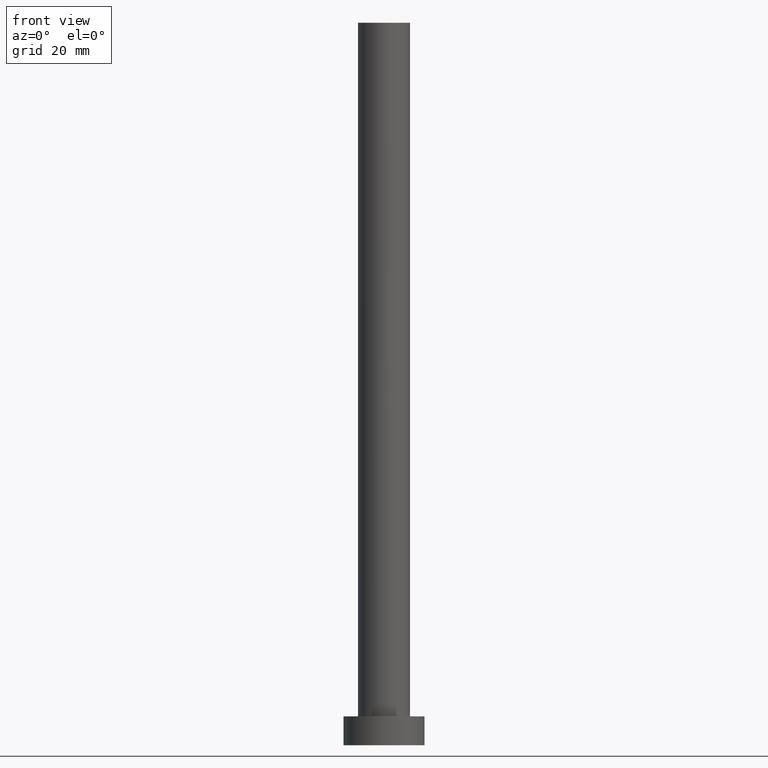
[diagram: clean part render]
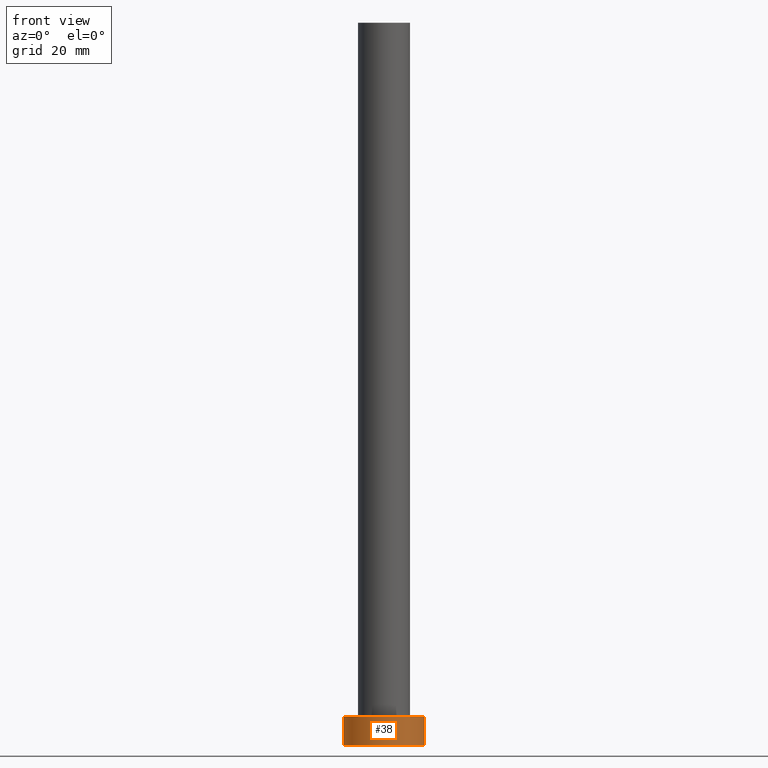
[diagram: same view with one face highlighted and labeled with its STEP entity id]
A machine part, front view. The second image highlights one B-rep face of the part: STEP entity #38.
In plain terms, the highlighted cylindrical surface (partial cylindrical patch) has radius 7 mm, axis along (-0, -0, -1).
Its self-contained STEP definition (entity closure, byte-faithful):
#5 = CARTESIAN_POINT ( 'NONE',  ( 7.000000000000000000, 8.572527594031473190E-16, 0.000000000000000000 ) ) ;
#7 = CYLINDRICAL_SURFACE ( 'NONE', #105, 7.000000000000000000 ) ;
#8 = CARTESIAN_POINT ( 'NONE',  ( -7.000000000000000000, 0.000000000000000000, 5.000000000000000000 ) ) ;
#9 = EDGE_CURVE ( 'NONE', #100, #41, #227, .T. ) ;
#14 = AXIS2_PLACEMENT_3D ( 'NONE', #202, #17, #79 ) ;
#15 = AXIS2_PLACEMENT_3D ( 'NONE', #194, #192, #148 ) ;
#17 = DIRECTION ( 'NONE',  ( 0.000000000000000000, 0.000000000000000000, 1.000000000000000000 ) ) ;
#21 = ORIENTED_EDGE ( 'NONE', *, *, #9, .F. ) ;
#22 = FACE_OUTER_BOUND ( 'NONE', #248, .T. ) ;
#23 = EDGE_CURVE ( 'NONE', #100, #162, #190, .T. ) ;
#27 = DIRECTION ( 'NONE',  ( -0.000000000000000000, -0.000000000000000000, -1.000000000000000000 ) ) ;
#37 = ORIENTED_EDGE ( 'NONE', *, *, #218, .T. ) ;
#38 = ADVANCED_FACE ( 'NONE', ( #22 ), #7, .T. ) ;
#41 = VERTEX_POINT ( 'NONE', #44 ) ;
#44 = CARTESIAN_POINT ( 'NONE',  ( 7.000000000000000000, 8.572527594031473190E-16, 5.000000000000000000 ) ) ;
#50 = CARTESIAN_POINT ( 'NONE',  ( -7.000000000000000000, 0.000000000000000000, 0.000000000000000000 ) ) ;
#68 = CARTESIAN_POINT ( 'NONE',  ( 0.000000000000000000, 0.000000000000000000, 5.000000000000000000 ) ) ;
#79 = DIRECTION ( 'NONE',  ( 1.000000000000000000, 0.000000000000000000, 0.000000000000000000 ) ) ;
#92 = CIRCLE ( 'NONE', #15, 7.000000000000000000 ) ;
#99 = VECTOR ( 'NONE', #219, 1000.000000000000000 ) ;
#100 = VERTEX_POINT ( 'NONE', #8 ) ;
#105 = AXIS2_PLACEMENT_3D ( 'NONE', #68, #27, #216 ) ;
#117 = VERTEX_POINT ( 'NONE', #5 ) ;
#123 = CARTESIAN_POINT ( 'NONE',  ( -7.000000000000000000, 0.000000000000000000, 5.000000000000000000 ) ) ;
#129 = CARTESIAN_POINT ( 'NONE',  ( 7.000000000000000000, 8.572527594031473190E-16, 5.000000000000000000 ) ) ;
#148 = DIRECTION ( 'NONE',  ( 1.000000000000000000, 0.000000000000000000, 0.000000000000000000 ) ) ;
#149 = LINE ( 'NONE', #129, #241 ) ;
#162 = VERTEX_POINT ( 'NONE', #50 ) ;
#190 = LINE ( 'NONE', #123, #99 ) ;
#192 = DIRECTION ( 'NONE',  ( 0.000000000000000000, 0.000000000000000000, 1.000000000000000000 ) ) ;
#194 = CARTESIAN_POINT ( 'NONE',  ( 0.000000000000000000, 0.000000000000000000, 0.000000000000000000 ) ) ;
#202 = CARTESIAN_POINT ( 'NONE',  ( 0.000000000000000000, 0.000000000000000000, 5.000000000000000000 ) ) ;
#203 = ORIENTED_EDGE ( 'NONE', *, *, #223, .F. ) ;
#216 = DIRECTION ( 'NONE',  ( -1.000000000000000000, 0.000000000000000000, 0.000000000000000000 ) ) ;
#218 = EDGE_CURVE ( 'NONE', #162, #117, #92, .T. ) ;
#219 = DIRECTION ( 'NONE',  ( -0.000000000000000000, -0.000000000000000000, -1.000000000000000000 ) ) ;
#223 = EDGE_CURVE ( 'NONE', #41, #117, #149, .T. ) ;
#227 = CIRCLE ( 'NONE', #14, 7.000000000000000000 ) ;
#238 = ORIENTED_EDGE ( 'NONE', *, *, #23, .T. ) ;
#241 = VECTOR ( 'NONE', #251, 1000.000000000000000 ) ;
#248 = EDGE_LOOP ( 'NONE', ( #203, #21, #238, #37 ) ) ;
#251 = DIRECTION ( 'NONE',  ( -0.000000000000000000, -0.000000000000000000, -1.000000000000000000 ) ) ;